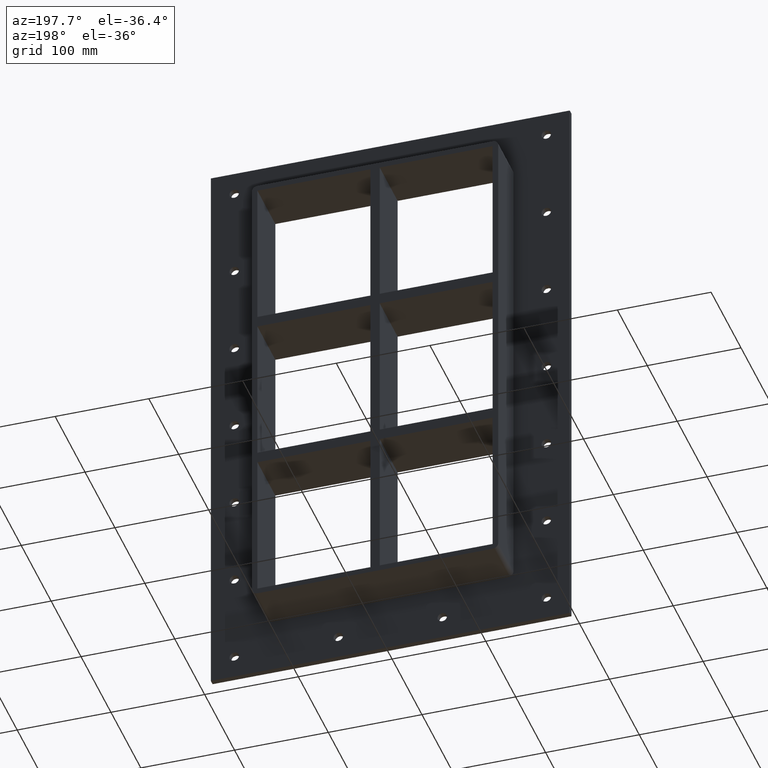
[diagram: clean part render]
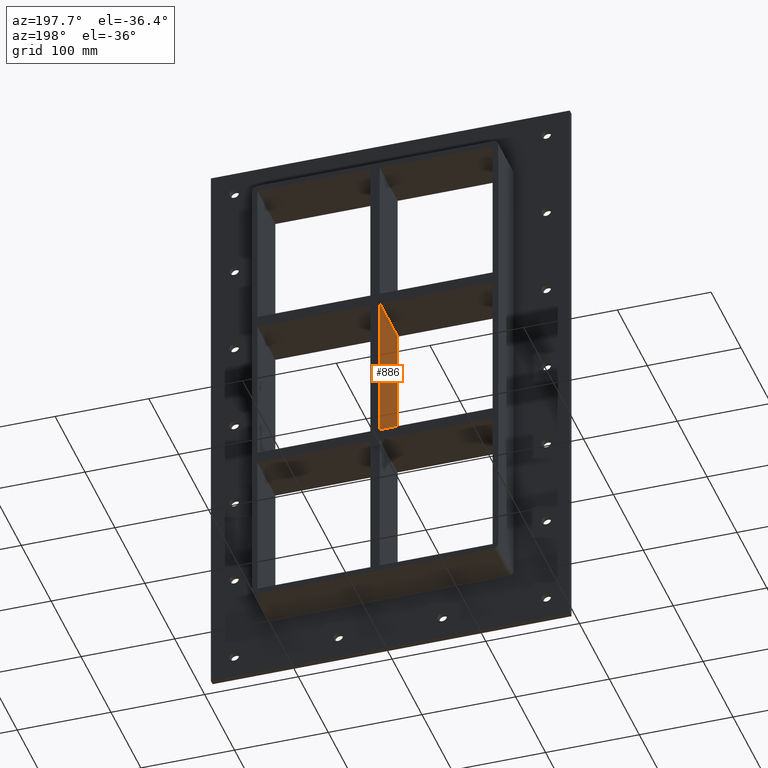
[diagram: same view with one face highlighted and labeled with its STEP entity id]
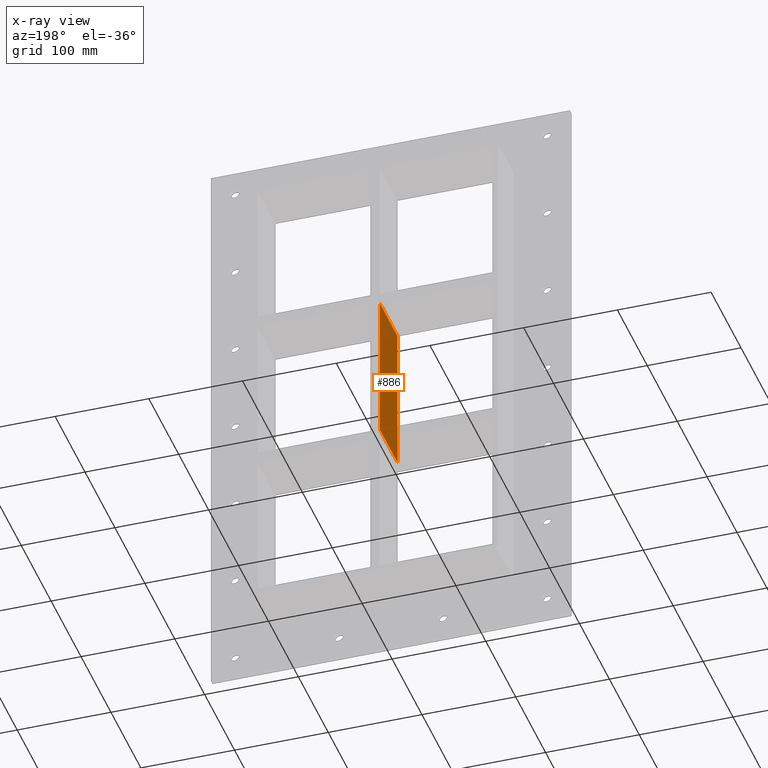
[diagram: x-ray of the same camera — body ghosted, the highlighted face saturated]
A machine part, auxiliary view. The second image highlights one B-rep face of the part: STEP entity #886.
The next image is the same camera in x-ray: the body ghosted, the highlighted face saturated — about 0% of this face is hidden behind the body in this view.
In plain terms, the highlighted planar face has unit normal (-1, 0, 0).
Its self-contained STEP definition (entity closure, byte-faithful):
#697=CARTESIAN_POINT('',(-5.000000000001368,-3.0,79.749999999990621));
#698=VERTEX_POINT('',#697);
#699=CARTESIAN_POINT('',(-5.000000000001373,57.0,79.749999999990678));
#700=VERTEX_POINT('',#699);
#701=CARTESIAN_POINT('',(-5.000000000001377,-3.0,79.749999999990649));
#702=DIRECTION('',(0.0,1.0,0.0));
#703=VECTOR('',#702,60.0);
#704=LINE('',#701,#703);
#705=EDGE_CURVE('',#698,#700,#704,.T.);
#856=CARTESIAN_POINT('',(-5.000000000001315,-3.0,-251.25000000000003));
#857=DIRECTION('',(-1.0,0.0,0.0));
#858=DIRECTION('',(0.0,0.0,1.0));
#859=AXIS2_PLACEMENT_3D('',#856,#857,#858);
#860=PLANE('',#859);
#861=ORIENTED_EDGE('',*,*,#705,.T.);
#862=CARTESIAN_POINT('',(-5.00000000000135,57.0,-79.749999999999943));
#863=VERTEX_POINT('',#862);
#864=CARTESIAN_POINT('',(-5.000000000001345,57.0,-79.749999999999943));
#865=DIRECTION('',(0.0,0.0,1.0));
#866=VECTOR('',#865,159.49999999999059);
#867=LINE('',#864,#866);
#868=EDGE_CURVE('',#863,#700,#867,.T.);
#869=ORIENTED_EDGE('',*,*,#868,.F.);
#870=CARTESIAN_POINT('',(-5.00000000000135,-3.0,-79.749999999999943));
#871=VERTEX_POINT('',#870);
#872=CARTESIAN_POINT('',(-5.000000000001341,57.0,-79.749999999999929));
#873=DIRECTION('',(0.0,-1.0,0.0));
#874=VECTOR('',#873,60.0);
#875=LINE('',#872,#874);
#876=EDGE_CURVE('',#863,#871,#875,.T.);
#877=ORIENTED_EDGE('',*,*,#876,.T.);
#878=CARTESIAN_POINT('',(-5.000000000001345,-3.0,-79.749999999999943));
#879=DIRECTION('',(0.0,0.0,1.0));
#880=VECTOR('',#879,159.49999999999054);
#881=LINE('',#878,#880);
#882=EDGE_CURVE('',#871,#698,#881,.T.);
#883=ORIENTED_EDGE('',*,*,#882,.T.);
#884=EDGE_LOOP('',(#861,#869,#877,#883));
#885=FACE_OUTER_BOUND('',#884,.T.);
#886=ADVANCED_FACE('',(#885),#860,.T.);